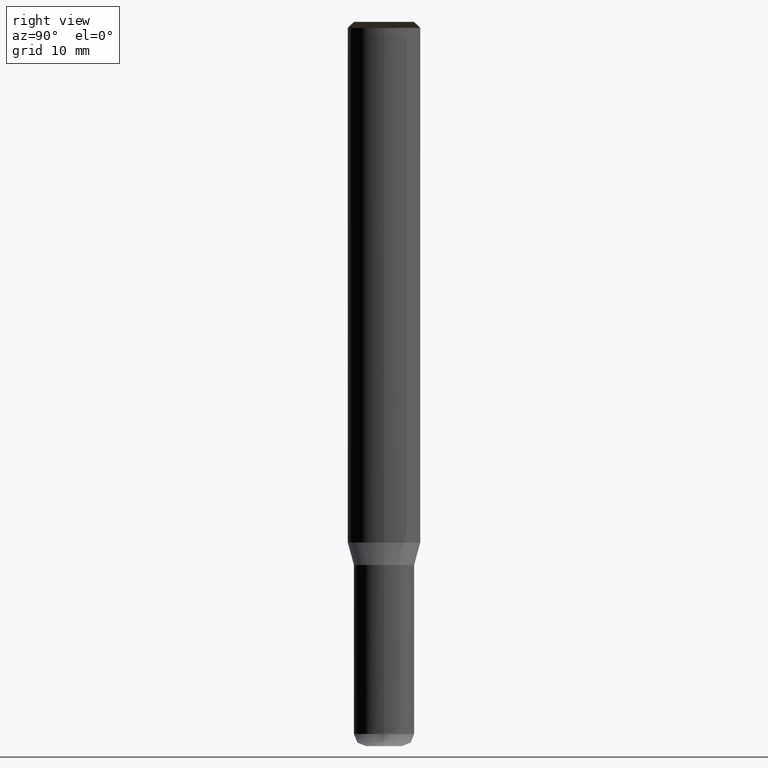
[diagram: clean part render]
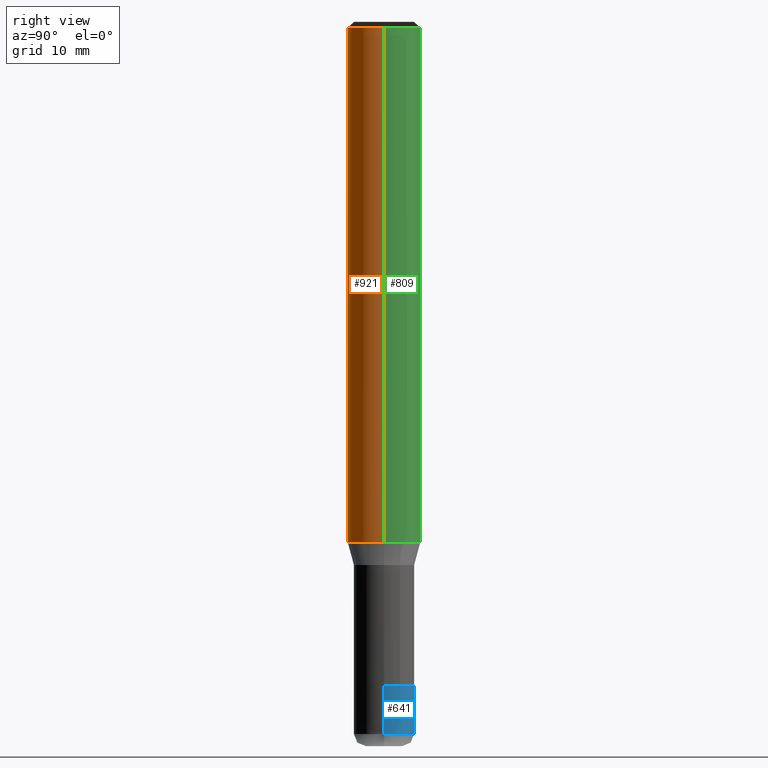
[diagram: same view with three faces highlighted in distinct colors, each labeled with its STEP entity id]
A machine part, right view with three faces highlighted in distinct colors.
Their STEP definitions:

[orange] entity #921 — the highlighted face is a freeform B-spline surface patch.
#551=CARTESIAN_POINT('',(3.0,0.0,0.0));
#555=CARTESIAN_POINT('',(-3.0,0.0,0.0));
#556=CARTESIAN_POINT('',(3.0,0.0,42.633974596216));
#560=CARTESIAN_POINT('',(-3.0,0.0,42.633974596216));
#570=CARTESIAN_POINT('',(-3.0,-3.0,0.0));
#571=CARTESIAN_POINT('',(0.0,-3.0,0.0));
#572=CARTESIAN_POINT('',(3.0,-3.0,0.0));
#573=CARTESIAN_POINT('',(-3.0,-3.0,42.633974596216));
#574=CARTESIAN_POINT('',(0.0,-3.0,42.633974596216));
#575=CARTESIAN_POINT('',(3.0,-3.0,42.633974596216));
#902=(
BOUNDED_SURFACE()
B_SPLINE_SURFACE(1,2,(
(#555,#570,#571,#572,#551),
(#560,#573,#574,#575,#556)
), .UNSPECIFIED.,.F.,.F.,.F.)
B_SPLINE_SURFACE_WITH_KNOTS((2,2),(3,2,3),(
0.0,1.0),(
0.0,0.5,1.0), .UNSPECIFIED.)
GEOMETRIC_REPRESENTATION_ITEM()
RATIONAL_B_SPLINE_SURFACE(((1.0,0.707106781187,1.0,0.707106781187,1.0),
(1.0,0.707106781187,1.0,0.707106781187,1.0)
))
REPRESENTATION_ITEM('')
SURFACE()
);
#903=(
BOUNDED_CURVE()
B_SPLINE_CURVE(1,(#560,#555),.UNSPECIFIED.,.F.,.F.)
B_SPLINE_CURVE_WITH_KNOTS((2,2),
(0.0,1.0),.UNSPECIFIED.)
CURVE()
GEOMETRIC_REPRESENTATION_ITEM()
RATIONAL_B_SPLINE_CURVE((1.0,1.0))
REPRESENTATION_ITEM('')
);
#904=(
BOUNDED_CURVE()
B_SPLINE_CURVE(2,(#555,#570,#571,#572,#551),.UNSPECIFIED.,.F.,.F.)
B_SPLINE_CURVE_WITH_KNOTS((3,2,3),
(0.0,0.5,1.0),.UNSPECIFIED.)
CURVE()
GEOMETRIC_REPRESENTATION_ITEM()
RATIONAL_B_SPLINE_CURVE((1.0,0.707106781187,1.0,0.707106781187,1.0))
REPRESENTATION_ITEM('')
);
#905=(
BOUNDED_CURVE()
B_SPLINE_CURVE(1,(#551,#556),.UNSPECIFIED.,.F.,.F.)
B_SPLINE_CURVE_WITH_KNOTS((2,2),
(0.0,1.0),.UNSPECIFIED.)
CURVE()
GEOMETRIC_REPRESENTATION_ITEM()
RATIONAL_B_SPLINE_CURVE((1.0,1.0))
REPRESENTATION_ITEM('')
);
#906=(
BOUNDED_CURVE()
B_SPLINE_CURVE(2,(#556,#575,#574,#573,#560),.UNSPECIFIED.,.F.,.F.)
B_SPLINE_CURVE_WITH_KNOTS((3,2,3),
(0.0,0.5,1.0),.UNSPECIFIED.)
CURVE()
GEOMETRIC_REPRESENTATION_ITEM()
RATIONAL_B_SPLINE_CURVE((1.0,0.707106781187,1.0,0.707106781187,1.0))
REPRESENTATION_ITEM('')
);
#907=VERTEX_POINT('',#551);
#908=VERTEX_POINT('',#555);
#909=VERTEX_POINT('',#556);
#910=VERTEX_POINT('',#560);
#911=EDGE_CURVE('',#910,#908,#903,.T.);
#912=EDGE_CURVE('',#908,#907,#904,.T.);
#913=EDGE_CURVE('',#907,#909,#905,.T.);
#914=EDGE_CURVE('',#909,#910,#906,.T.);
#915=ORIENTED_EDGE('',*,*,#911,.T.);
#916=ORIENTED_EDGE('',*,*,#912,.T.);
#917=ORIENTED_EDGE('',*,*,#913,.T.);
#918=ORIENTED_EDGE('',*,*,#914,.T.);
#919=EDGE_LOOP('',(#915,#916,#917,#918));
#920=FACE_OUTER_BOUND('',#919,.T.);
#921=ADVANCED_FACE('',(#920),#902,.T.);

[blue] entity #641 — the highlighted face is a freeform B-spline surface patch.
#523=CARTESIAN_POINT('',(2.5,0.0,-15.866025403784));
#524=CARTESIAN_POINT('',(2.5,2.5,-15.866025403784));
#525=CARTESIAN_POINT('',(0.0,2.5,-15.866025403784));
#526=CARTESIAN_POINT('',(-2.5,2.5,-15.866025403784));
#527=CARTESIAN_POINT('',(-2.5,0.0,-15.866025403784));
#528=CARTESIAN_POINT('',(2.5,0.0,-11.866025403784));
#529=CARTESIAN_POINT('',(2.5,2.5,-11.866025403784));
#530=CARTESIAN_POINT('',(0.0,2.5,-11.866025403784));
#531=CARTESIAN_POINT('',(-2.5,2.5,-11.866025403784));
#532=CARTESIAN_POINT('',(-2.5,0.0,-11.866025403784));
#622=(
BOUNDED_SURFACE()
B_SPLINE_SURFACE(1,2,(
(#523,#524,#525,#526,#527),
(#528,#529,#530,#531,#532)
), .UNSPECIFIED.,.F.,.F.,.F.)
B_SPLINE_SURFACE_WITH_KNOTS((2,2),(3,2,3),(
0.0,1.0),(
0.0,0.5,1.0), .UNSPECIFIED.)
GEOMETRIC_REPRESENTATION_ITEM()
RATIONAL_B_SPLINE_SURFACE(((1.0,0.707106781187,1.0,0.707106781187,1.0),
(1.0,0.707106781187,1.0,0.707106781187,1.0)
))
REPRESENTATION_ITEM('')
SURFACE()
);
#623=(
BOUNDED_CURVE()
B_SPLINE_CURVE(2,(#528,#529,#530,#531,#532),.UNSPECIFIED.,.F.,.F.)
B_SPLINE_CURVE_WITH_KNOTS((3,2,3),
(0.0,0.5,1.0),.UNSPECIFIED.)
CURVE()
GEOMETRIC_REPRESENTATION_ITEM()
RATIONAL_B_SPLINE_CURVE((1.0,0.707106781187,1.0,0.707106781187,1.0))
REPRESENTATION_ITEM('')
);
#624=(
BOUNDED_CURVE()
B_SPLINE_CURVE(1,(#532,#527),.UNSPECIFIED.,.F.,.F.)
B_SPLINE_CURVE_WITH_KNOTS((2,2),
(0.0,1.0),.UNSPECIFIED.)
CURVE()
GEOMETRIC_REPRESENTATION_ITEM()
RATIONAL_B_SPLINE_CURVE((1.0,1.0))
REPRESENTATION_ITEM('')
);
#625=(
BOUNDED_CURVE()
B_SPLINE_CURVE(2,(#527,#526,#525,#524,#523),.UNSPECIFIED.,.F.,.F.)
B_SPLINE_CURVE_WITH_KNOTS((3,2,3),
(0.0,0.5,1.0),.UNSPECIFIED.)
CURVE()
GEOMETRIC_REPRESENTATION_ITEM()
RATIONAL_B_SPLINE_CURVE((1.0,0.707106781187,1.0,0.707106781187,1.0))
REPRESENTATION_ITEM('')
);
#626=(
BOUNDED_CURVE()
B_SPLINE_CURVE(1,(#523,#528),.UNSPECIFIED.,.F.,.F.)
B_SPLINE_CURVE_WITH_KNOTS((2,2),
(0.0,1.0),.UNSPECIFIED.)
CURVE()
GEOMETRIC_REPRESENTATION_ITEM()
RATIONAL_B_SPLINE_CURVE((1.0,1.0))
REPRESENTATION_ITEM('')
);
#627=VERTEX_POINT('',#523);
#628=VERTEX_POINT('',#527);
#629=VERTEX_POINT('',#528);
#630=VERTEX_POINT('',#532);
#631=EDGE_CURVE('',#629,#630,#623,.T.);
#632=EDGE_CURVE('',#630,#628,#624,.T.);
#633=EDGE_CURVE('',#628,#627,#625,.T.);
#634=EDGE_CURVE('',#627,#629,#626,.T.);
#635=ORIENTED_EDGE('',*,*,#631,.T.);
#636=ORIENTED_EDGE('',*,*,#632,.T.);
#637=ORIENTED_EDGE('',*,*,#633,.T.);
#638=ORIENTED_EDGE('',*,*,#634,.T.);
#639=EDGE_LOOP('',(#635,#636,#637,#638));
#640=FACE_OUTER_BOUND('',#639,.T.);
#641=ADVANCED_FACE('',(#640),#622,.T.);

[green] entity #809 — the highlighted face is a freeform B-spline surface patch.
#551=CARTESIAN_POINT('',(3.0,0.0,0.0));
#552=CARTESIAN_POINT('',(3.0,3.0,0.0));
#553=CARTESIAN_POINT('',(0.0,3.0,0.0));
#554=CARTESIAN_POINT('',(-3.0,3.0,0.0));
#555=CARTESIAN_POINT('',(-3.0,0.0,0.0));
#556=CARTESIAN_POINT('',(3.0,0.0,42.633974596216));
#557=CARTESIAN_POINT('',(3.0,3.0,42.633974596216));
#558=CARTESIAN_POINT('',(0.0,3.0,42.633974596216));
#559=CARTESIAN_POINT('',(-3.0,3.0,42.633974596216));
#560=CARTESIAN_POINT('',(-3.0,0.0,42.633974596216));
#790=(
BOUNDED_SURFACE()
B_SPLINE_SURFACE(1,2,(
(#551,#552,#553,#554,#555),
(#556,#557,#558,#559,#560)
), .UNSPECIFIED.,.F.,.F.,.F.)
B_SPLINE_SURFACE_WITH_KNOTS((2,2),(3,2,3),(
0.0,1.0),(
0.0,0.5,1.0), .UNSPECIFIED.)
GEOMETRIC_REPRESENTATION_ITEM()
RATIONAL_B_SPLINE_SURFACE(((1.0,0.707106781187,1.0,0.707106781187,1.0),
(1.0,0.707106781187,1.0,0.707106781187,1.0)
))
REPRESENTATION_ITEM('')
SURFACE()
);
#791=(
BOUNDED_CURVE()
B_SPLINE_CURVE(2,(#556,#557,#558,#559,#560),.UNSPECIFIED.,.F.,.F.)
B_SPLINE_CURVE_WITH_KNOTS((3,2,3),
(0.0,0.5,1.0),.UNSPECIFIED.)
CURVE()
GEOMETRIC_REPRESENTATION_ITEM()
RATIONAL_B_SPLINE_CURVE((1.0,0.707106781187,1.0,0.707106781187,1.0))
REPRESENTATION_ITEM('')
);
#792=(
BOUNDED_CURVE()
B_SPLINE_CURVE(1,(#560,#555),.UNSPECIFIED.,.F.,.F.)
B_SPLINE_CURVE_WITH_KNOTS((2,2),
(0.0,1.0),.UNSPECIFIED.)
CURVE()
GEOMETRIC_REPRESENTATION_ITEM()
RATIONAL_B_SPLINE_CURVE((1.0,1.0))
REPRESENTATION_ITEM('')
);
#793=(
BOUNDED_CURVE()
B_SPLINE_CURVE(2,(#555,#554,#553,#552,#551),.UNSPECIFIED.,.F.,.F.)
B_SPLINE_CURVE_WITH_KNOTS((3,2,3),
(0.0,0.5,1.0),.UNSPECIFIED.)
CURVE()
GEOMETRIC_REPRESENTATION_ITEM()
RATIONAL_B_SPLINE_CURVE((1.0,0.707106781187,1.0,0.707106781187,1.0))
REPRESENTATION_ITEM('')
);
#794=(
BOUNDED_CURVE()
B_SPLINE_CURVE(1,(#551,#556),.UNSPECIFIED.,.F.,.F.)
B_SPLINE_CURVE_WITH_KNOTS((2,2),
(0.0,1.0),.UNSPECIFIED.)
CURVE()
GEOMETRIC_REPRESENTATION_ITEM()
RATIONAL_B_SPLINE_CURVE((1.0,1.0))
REPRESENTATION_ITEM('')
);
#795=VERTEX_POINT('',#551);
#796=VERTEX_POINT('',#555);
#797=VERTEX_POINT('',#556);
#798=VERTEX_POINT('',#560);
#799=EDGE_CURVE('',#797,#798,#791,.T.);
#800=EDGE_CURVE('',#798,#796,#792,.T.);
#801=EDGE_CURVE('',#796,#795,#793,.T.);
#802=EDGE_CURVE('',#795,#797,#794,.T.);
#803=ORIENTED_EDGE('',*,*,#799,.T.);
#804=ORIENTED_EDGE('',*,*,#800,.T.);
#805=ORIENTED_EDGE('',*,*,#801,.T.);
#806=ORIENTED_EDGE('',*,*,#802,.T.);
#807=EDGE_LOOP('',(#803,#804,#805,#806));
#808=FACE_OUTER_BOUND('',#807,.T.);
#809=ADVANCED_FACE('',(#808),#790,.T.);